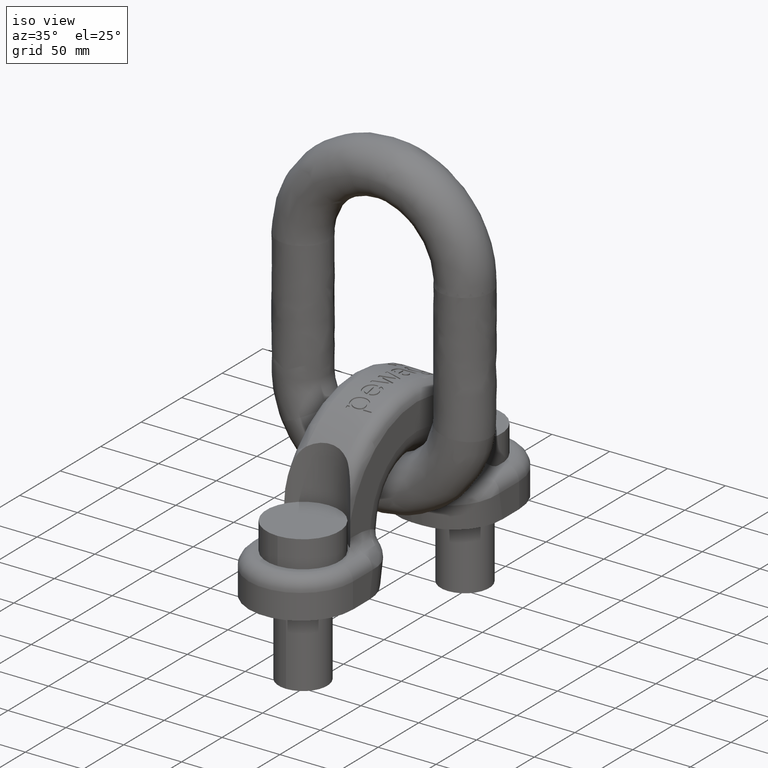
[diagram: clean part render]
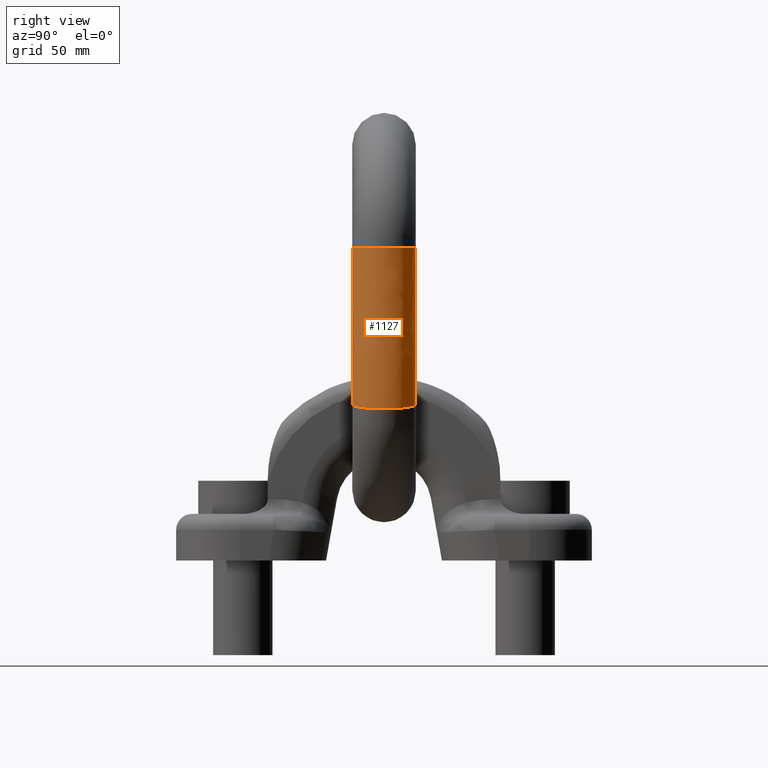
[diagram: tour spotlight — one face highlighted and labeled with its STEP entity id]
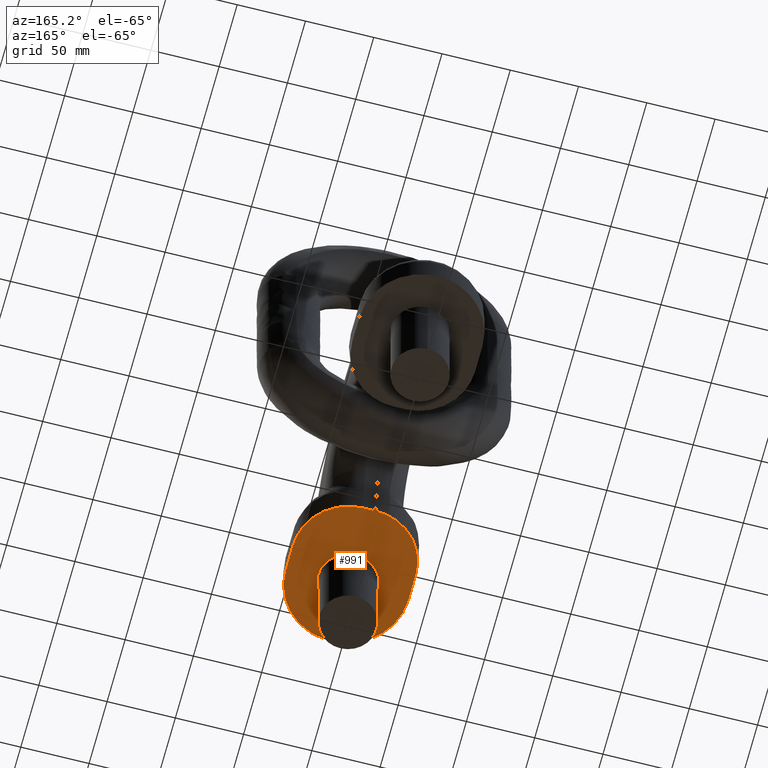
[diagram: tour spotlight — one face highlighted and labeled with its STEP entity id]
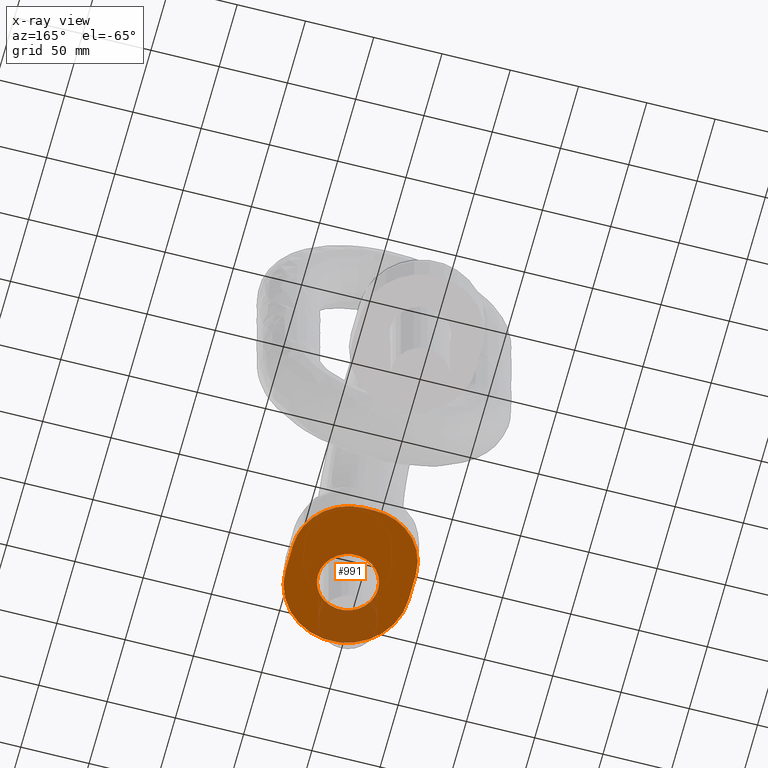
[diagram: x-ray of the same camera — body ghosted, this tour face saturated]
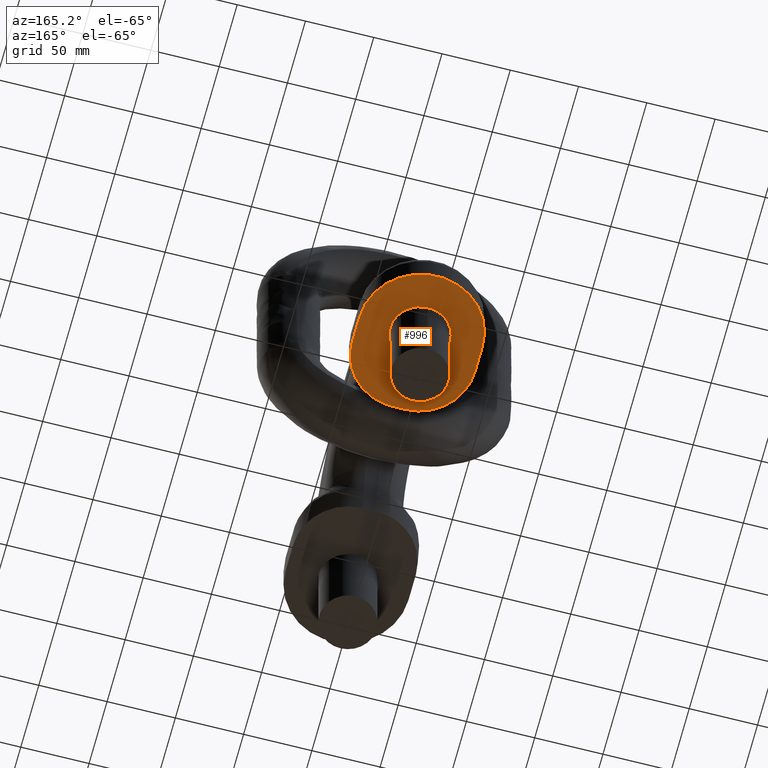
[diagram: tour spotlight — one face highlighted and labeled with its STEP entity id]
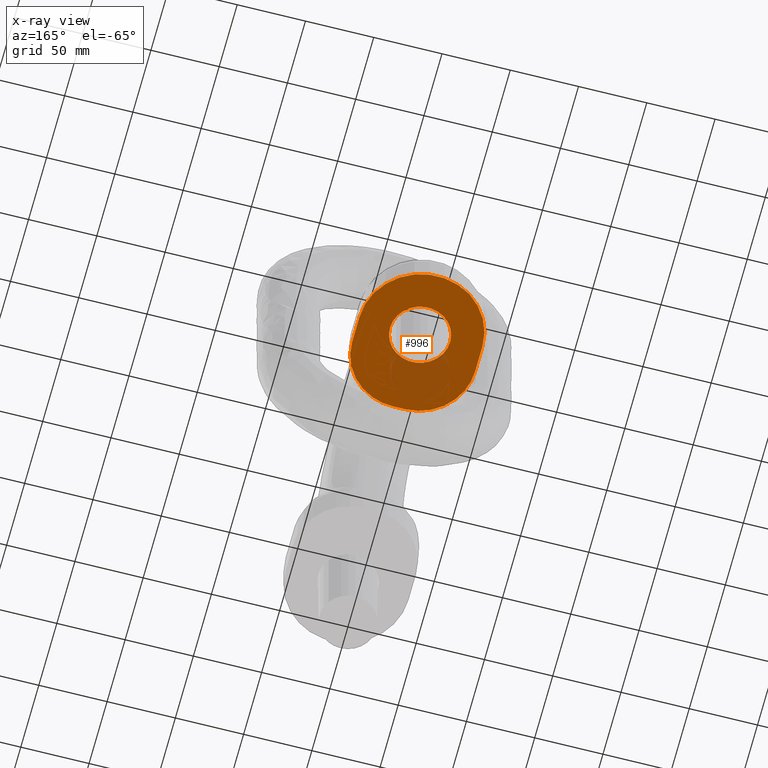
[diagram: x-ray of the same camera — body ghosted, this tour face saturated]
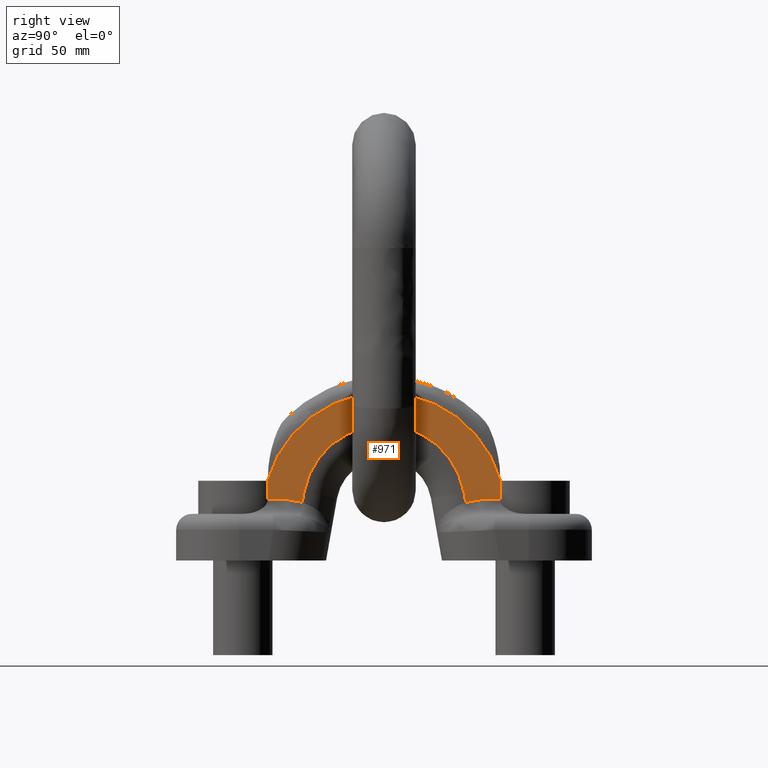
[diagram: tour spotlight — one face highlighted and labeled with its STEP entity id]
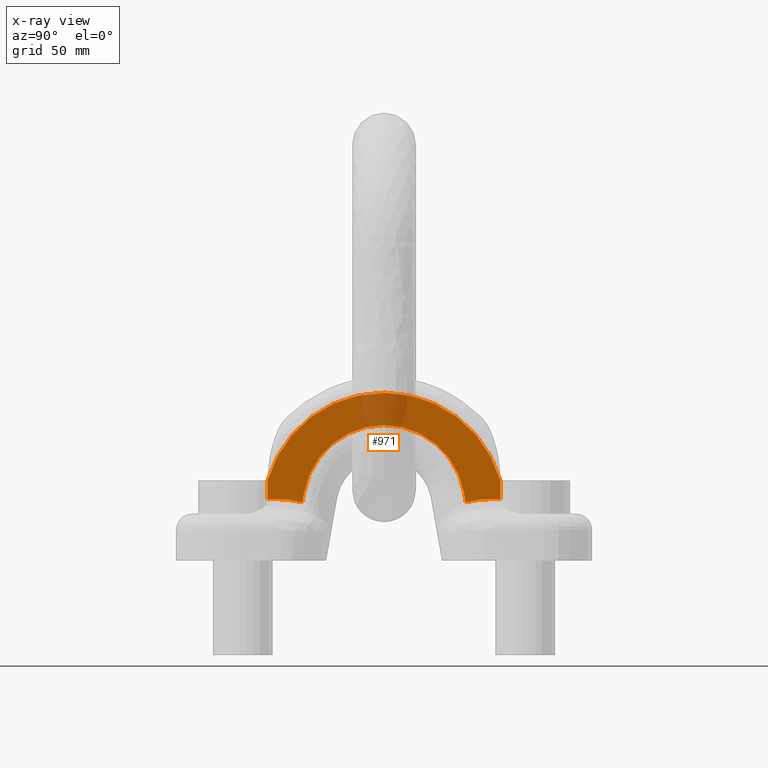
[diagram: x-ray of the same camera — body ghosted, this tour face saturated]
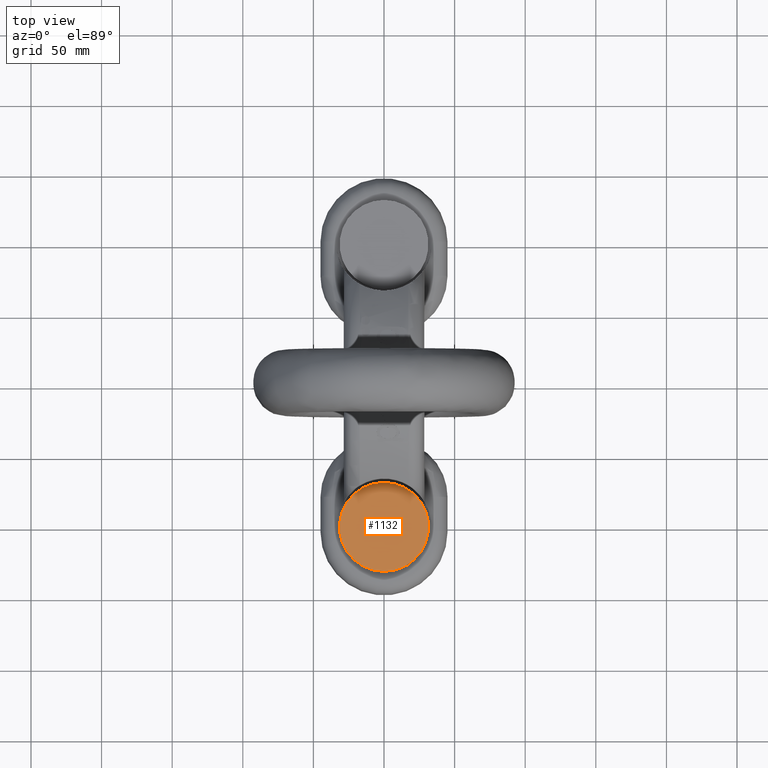
[diagram: tour spotlight — one face highlighted and labeled with its STEP entity id]
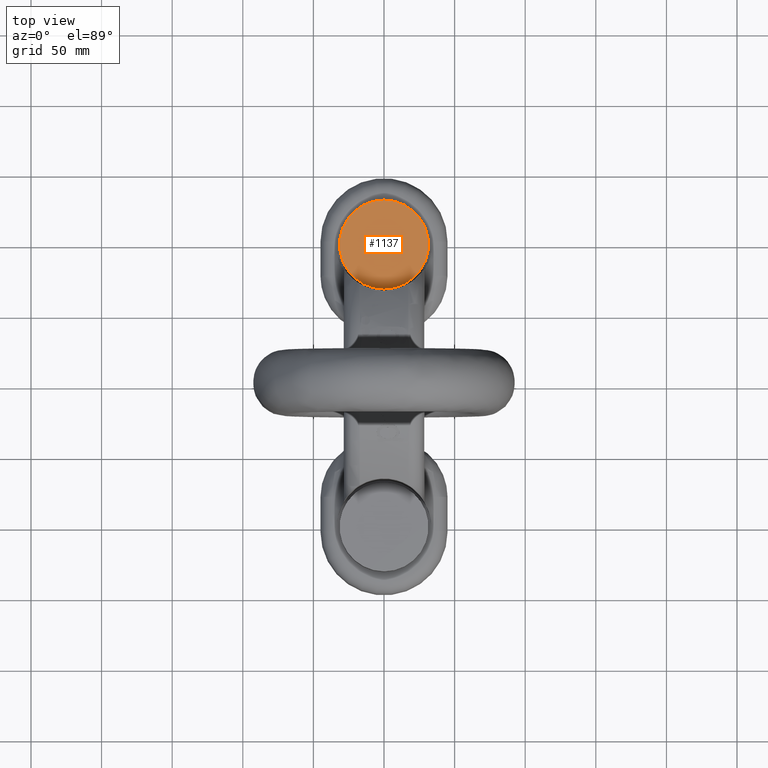
[diagram: tour spotlight — one face highlighted and labeled with its STEP entity id]
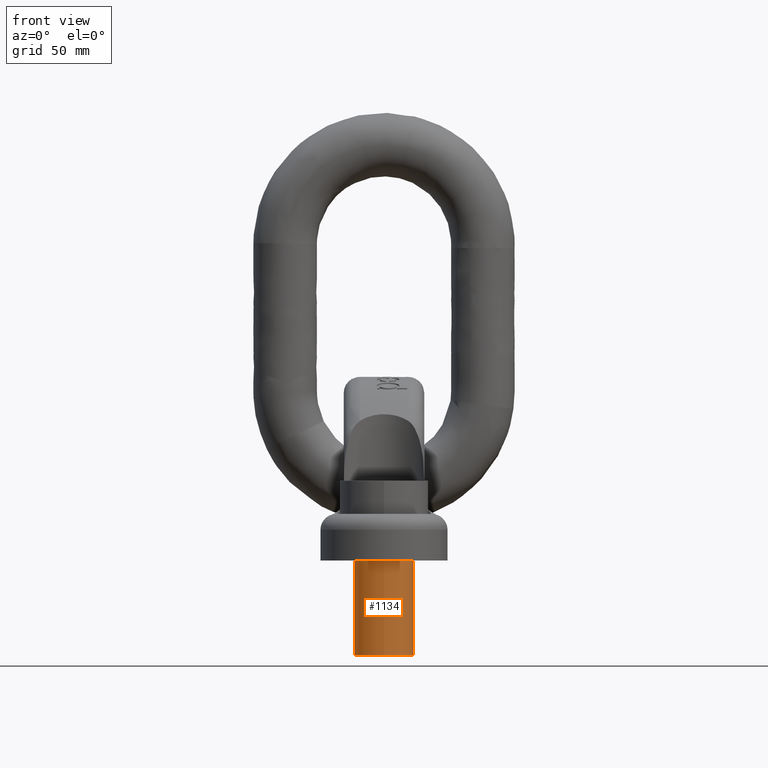
[diagram: tour spotlight — one face highlighted and labeled with its STEP entity id]
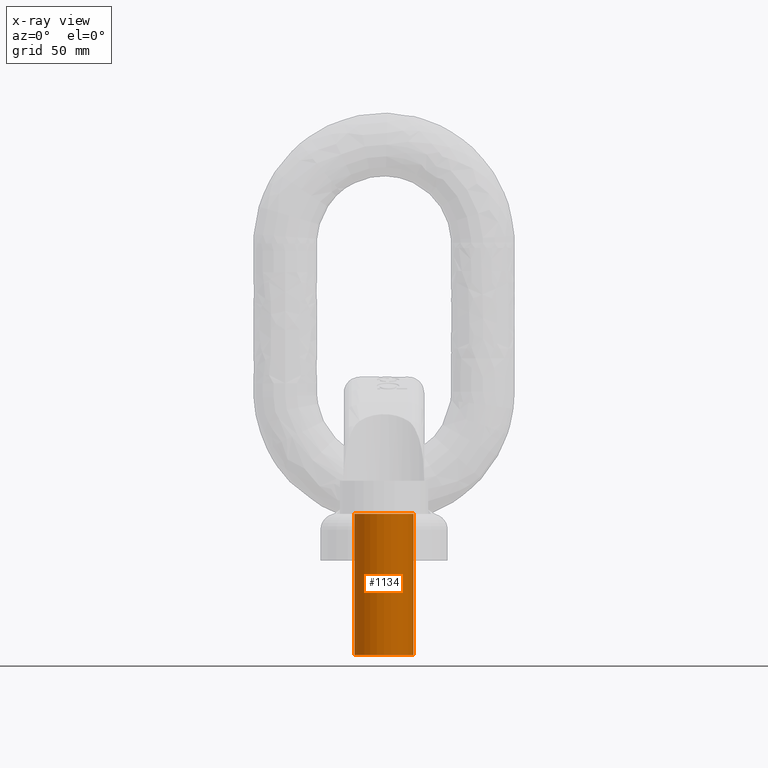
[diagram: x-ray of the same camera — body ghosted, this tour face saturated]
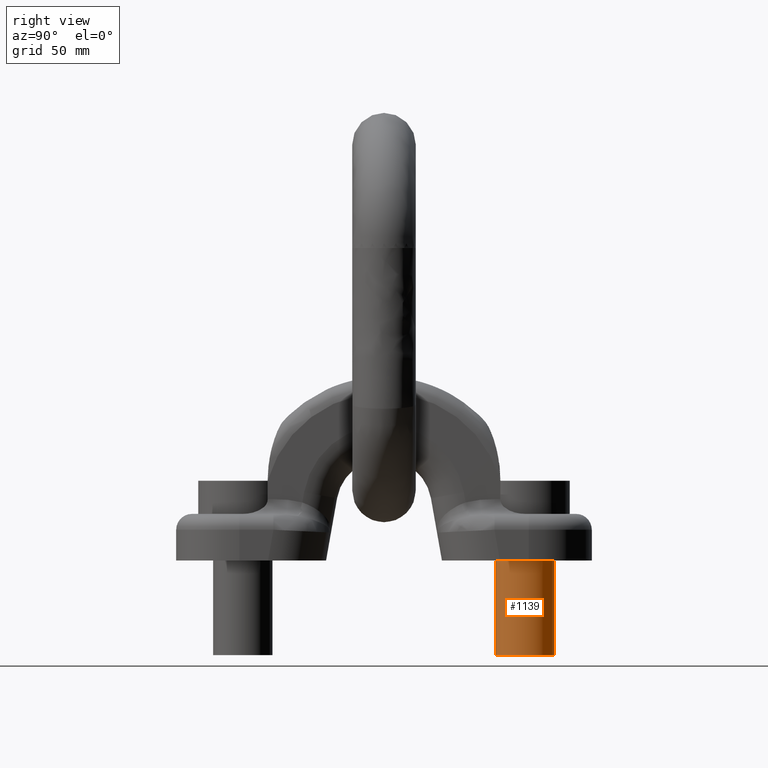
[diagram: tour spotlight — one face highlighted and labeled with its STEP entity id]
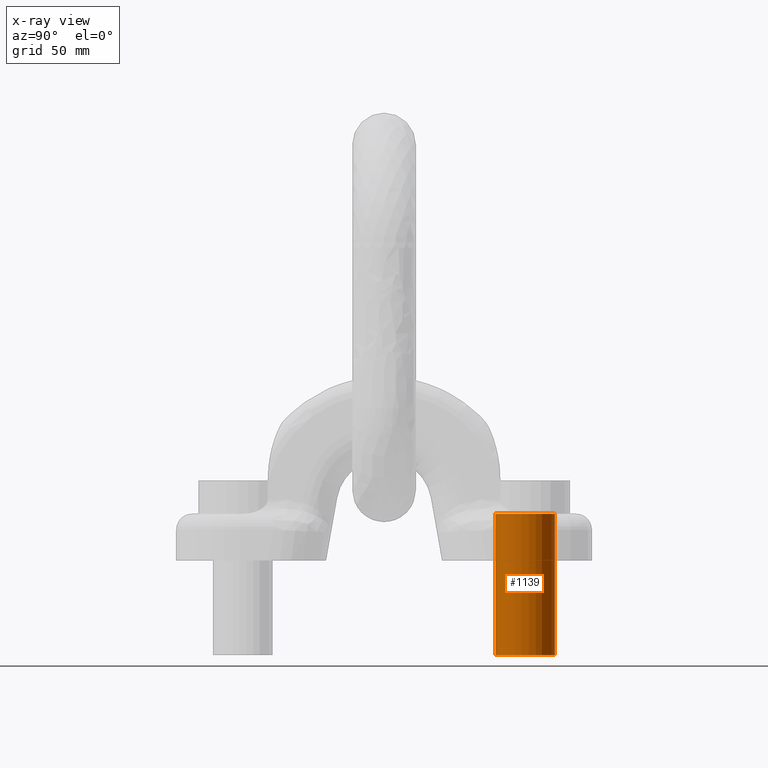
[diagram: x-ray of the same camera — body ghosted, this tour face saturated]
A machine part: a face-by-face anatomy tour. The part has 171 B-rep faces; the first image is the clean iso view, then the 8 largest visible faces are spotlighted one at a time (largest first), each with its STEP entity span.

Face 1 — right view, entity #1127. In plain terms, the highlighted face is a freeform B-spline surface patch.
Definition (entity closure, byte-faithful):
#23=(
BOUNDED_CURVE()
B_SPLINE_CURVE(4,(#7091,#7092,#7093,#7094,#7095,#7096,#7097,#7098,#7099,
#7100,#7101,#7102,#7103,#7104),.UNSPECIFIED.,.T.,.F.)
B_SPLINE_CURVE_WITH_KNOTS((2,3,3,3,3,3,2),(-0.25,0.,0.25,0.5,0.75,1.,1.25),
 .UNSPECIFIED.)
CURVE()
GEOMETRIC_REPRESENTATION_ITEM()
RATIONAL_B_SPLINE_CURVE((1.0166117137858,1.0166117137858,0.958470715535492,
1.0166117137858,1.0166117137858,0.958470715535492,1.0166117137858,1.0166117137858,
0.958470715535492,1.0166117137858,1.0166117137858,0.958470715535492,1.0166117137858,
1.0166117137858))
REPRESENTATION_ITEM('')
);
#24=(
BOUNDED_CURVE()
B_SPLINE_CURVE(4,(#7106,#7107,#7108,#7109,#7110,#7111,#7112,#7113,#7114,
#7115,#7116,#7117,#7118,#7119),.UNSPECIFIED.,.T.,.F.)
B_SPLINE_CURVE_WITH_KNOTS((2,3,3,3,3,3,2),(-0.25,0.,0.25,0.5,0.75,1.,1.25),
 .UNSPECIFIED.)
CURVE()
GEOMETRIC_REPRESENTATION_ITEM()
RATIONAL_B_SPLINE_CURVE((1.0166117137858,1.0166117137858,0.958470715535492,
1.0166117137858,1.0166117137858,0.958470715535492,1.0166117137858,1.0166117137858,
0.958470715535492,1.0166117137858,1.0166117137858,0.958470715535492,1.0166117137858,
1.0166117137858))
REPRESENTATION_ITEM('')
);
#755=(
BOUNDED_SURFACE()
B_SPLINE_SURFACE(4,3,((#7121,#7122,#7123,#7124,#7125,#7126,#7127,#7128,
#7129,#7130),(#7131,#7132,#7133,#7134,#7135,#7136,#7137,#7138,#7139,#7140),
(#7141,#7142,#7143,#7144,#7145,#7146,#7147,#7148,#7149,#7150),(#7151,#7152,
#7153,#7154,#7155,#7156,#7157,#7158,#7159,#7160),(#7161,#7162,#7163,#7164,
#7165,#7166,#7167,#7168,#7169,#7170),(#7171,#7172,#7173,#7174,#7175,#7176,
#7177,#7178,#7179,#7180),(#7181,#7182,#7183,#7184,#7185,#7186,#7187,#7188,
#7189,#7190),(#7191,#7192,#7193,#7194,#7195,#7196,#7197,#7198,#7199,#7200),
(#7201,#7202,#7203,#7204,#7205,#7206,#7207,#7208,#7209,#7210),(#7211,#7212,
#7213,#7214,#7215,#7216,#7217,#7218,#7219,#7220),(#7221,#7222,#7223,#7224,
#7225,#7226,#7227,#7228,#7229,#7230),(#7231,#7232,#7233,#7234,#7235,#7236,
#7237,#7238,#7239,#7240),(#7241,#7242,#7243,#7244,#7245,#7246,#7247,#7248,
#7249,#7250),(#7251,#7252,#7253,#7254,#7255,#7256,#7257,#7258,#7259,#7260)),
 .UNSPECIFIED.,.T.,.F.,.F.)
B_SPLINE_SURFACE_WITH_KNOTS((2,3,3,3,3,3,2),(4,1,1,1,1,1,1,4),(-0.25,0.,
0.25,0.5,0.75,1.,1.25),(0.,0.0432087135786119,0.0921088676254971,0.141290802977337,
0.189262808703866,0.373676181936575,0.994886599698742,1.),.UNSPECIFIED.)
GEOMETRIC_REPRESENTATION_ITEM()
RATIONAL_B_SPLINE_SURFACE(((1.0166117137858,1.0166117137858,1.0166117137858,
1.0166117137858,1.0166117137858,1.0166117137858,1.0166117137858,1.0166117137858,
1.0166117137858,1.0166117137858),(1.0166117137858,1.0166117137858,1.0166117137858,
1.0166117137858,1.0166117137858,1.0166117137858,1.0166117137858,1.0166117137858,
1.0166117137858,1.0166117137858),(0.958470715535492,0.958470715535492,0.958470715535491,
0.958470715535493,0.958470715535492,0.958470715535493,0.95847071553549,
0.958470715535493,0.958470715535492,0.958470715535492),(1.0166117137858,
1.0166117137858,1.0166117137858,1.0166117137858,1.0166117137858,1.0166117137858,
1.0166117137858,1.0166117137858,1.0166117137858,1.0166117137858),(1.0166117137858,
1.0166117137858,1.0166117137858,1.0166117137858,1.0166117137858,1.0166117137858,
1.0166117137858,1.0166117137858,1.0166117137858,1.0166117137858),(0.958470715535492,
0.958470715535492,0.958470715535491,0.958470715535493,0.958470715535492,
0.958470715535493,0.95847071553549,0.958470715535493,0.958470715535492,
0.958470715535492),(1.0166117137858,1.0166117137858,1.0166117137858,1.0166117137858,
1.0166117137858,1.0166117137858,1.0166117137858,1.0166117137858,1.0166117137858,
1.0166117137858),(1.0166117137858,1.0166117137858,1.0166117137858,1.0166117137858,
1.0166117137858,1.0166117137858,1.0166117137858,1.0166117137858,1.0166117137858,
1.0166117137858),(0.958470715535492,0.958470715535492,0.958470715535491,
0.958470715535493,0.958470715535492,0.958470715535493,0.95847071553549,
0.958470715535493,0.958470715535492,0.958470715535492),(1.0166117137858,
1.0166117137858,1.0166117137858,1.0166117137858,1.0166117137858,1.0166117137858,
1.0166117137858,1.0166117137858,1.0166117137858,1.0166117137858),(1.0166117137858,
1.0166117137858,1.0166117137858,1.0166117137858,1.0166117137858,1.0166117137858,
1.0166117137858,1.0166117137858,1.0166117137858,1.0166117137858),(0.958470715535492,
0.958470715535492,0.958470715535491,0.958470715535493,0.958470715535492,
0.958470715535493,0.95847071553549,0.958470715535493,0.958470715535492,
0.958470715535492),(1.0166117137858,1.0166117137858,1.0166117137858,1.0166117137858,
1.0166117137858,1.0166117137858,1.0166117137858,1.0166117137858,1.0166117137858,
1.0166117137858),(1.0166117137858,1.0166117137858,1.0166117137858,1.0166117137858,
1.0166117137858,1.0166117137858,1.0166117137858,1.0166117137858,1.0166117137858,
1.0166117137858)))
REPRESENTATION_ITEM('')
SURFACE()
);
#1127=ADVANCED_FACE('',(#1519,#1520),#755,.F.);
#1519=FACE_BOUND('',#1717,.T.);
#1520=FACE_BOUND('',#1718,.T.);
#1717=EDGE_LOOP('',(#2819));
#1718=EDGE_LOOP('',(#2820));
#2819=ORIENTED_EDGE('',*,*,#3501,.T.);
#2820=ORIENTED_EDGE('',*,*,#3502,.F.);
#3097=VERTEX_POINT('',#7105);
#3098=VERTEX_POINT('',#7120);
#3501=EDGE_CURVE('',#3097,#3097,#23,.T.);
#3502=EDGE_CURVE('',#3098,#3098,#24,.T.);
#7091=CARTESIAN_POINT('',(77.3007613865596,22.5,109.379454022416));
#7092=CARTESIAN_POINT('',(61.5243730694713,22.5,111.463071945445));
#7093=CARTESIAN_POINT('',(51.0454819839968,18.5225243558257,112.847039228724));
#7094=CARTESIAN_POINT('',(47.1013849047248,7.95495128834867,113.367943709481));
#7095=CARTESIAN_POINT('',(47.1013849047248,-7.95495128834865,113.367943709481));
#7096=CARTESIAN_POINT('',(51.0454819839968,-18.5225243558257,112.847039228724));
#7097=CARTESIAN_POINT('',(61.5243730694712,-22.5,111.463071945445));
#7098=CARTESIAN_POINT('',(77.3007613865595,-22.5,109.379454022416));
#7099=CARTESIAN_POINT('',(87.779652472034,-18.5225243558257,107.995486739137));
#7100=CARTESIAN_POINT('',(91.7237495513061,-7.95495128834867,107.474582258379));
#7101=CARTESIAN_POINT('',(91.7237495513061,7.95495128834865,107.474582258379));
#7102=CARTESIAN_POINT('',(87.779652472034,18.5225243558256,107.995486739137));
#7103=CARTESIAN_POINT('',(77.3007613865596,22.5,109.379454022416));
#7104=CARTESIAN_POINT('',(61.5243730694713,22.5,111.463071945445));
#7105=CARTESIAN_POINT('',(69.4125672280154,22.5,110.42126298393));
#7106=CARTESIAN_POINT('',(77.9548750239718,22.5,221.279225035843));
#7107=CARTESIAN_POINT('',(62.0449880121461,22.5,221.278385300655));
#7108=CARTESIAN_POINT('',(51.4774252830678,18.5225243558257,221.277827537155));
#7109=CARTESIAN_POINT('',(47.4999535301114,7.95495128834866,221.277617603358));
#7110=CARTESIAN_POINT('',(47.4999535301114,-7.95495128834867,221.277617603358));
#7111=CARTESIAN_POINT('',(51.4774252830679,-18.5225243558257,221.277827537155));
#7112=CARTESIAN_POINT('',(62.0449880121461,-22.5,221.278385300655));
#7113=CARTESIAN_POINT('',(77.9548750239718,-22.5,221.279225035843));
#7114=CARTESIAN_POINT('',(88.52243775305,-18.5225243558257,221.279782799343));
#7115=CARTESIAN_POINT('',(92.4999095060064,-7.95495128834866,221.27999273314));
#7116=CARTESIAN_POINT('',(92.4999095060064,7.95495128834866,221.27999273314));
#7117=CARTESIAN_POINT('',(88.52243775305,18.5225243558257,221.279782799343));
#7118=CARTESIAN_POINT('',(77.9548750239718,22.5,221.279225035843));
#7119=CARTESIAN_POINT('',(62.0449880121461,22.5,221.278385300655));
#7120=CARTESIAN_POINT('',(69.9999315180589,22.5,221.278805168249));
#7121=CARTESIAN_POINT('',(61.5243730694713,22.5,111.463071945445));
#7122=CARTESIAN_POINT('',(61.6841675240441,22.5,112.689595749437));
#7123=CARTESIAN_POINT('',(61.9490660167534,22.5,115.33886785264));
#7124=CARTESIAN_POINT('',(62.0719379187288,22.5,119.329266250323));
#7125=CARTESIAN_POINT('',(62.0403747593272,22.5,124.539408769396));
#7126=CARTESIAN_POINT('',(62.0468340514941,22.4999999999999,134.445102627707));
#7127=CARTESIAN_POINT('',(62.0433444384774,22.5000000000001,165.975830546508));
#7128=CARTESIAN_POINT('',(62.0456695433861,22.4999999999999,198.17382256403));
#7129=CARTESIAN_POINT('',(62.0449923462162,22.5,221.091411880696));
#7130=CARTESIAN_POINT('',(62.0449880121461,22.5,221.278385300655));
#7131=CARTESIAN_POINT('',(77.3007613865596,22.5,109.379454022416));
#7132=CARTESIAN_POINT('',(77.5015311366207,22.5,110.907548343909));
#7133=CARTESIAN_POINT('',(77.8343562294252,22.5,114.217875140239));
#7134=CARTESIAN_POINT('',(77.9887355607674,22.5,119.631356401599));
#7135=CARTESIAN_POINT('',(77.9490788177274,22.5,124.489054213263));
#7136=CARTESIAN_POINT('',(77.9571944339886,22.5,134.463268032859));
#7137=CARTESIAN_POINT('',(77.9528099968991,22.5,165.960124612621));
#7138=CARTESIAN_POINT('',(77.955731316871,22.4999999999999,198.177667293768));
#7139=CARTESIAN_POINT('',(77.9548804694059,22.5,221.092307189764));
#7140=CARTESIAN_POINT('',(77.9548750239718,22.5,221.279225035843));
#7141=CARTESIAN_POINT('',(87.779652472034,18.5225243558256,107.995486739137));
#7142=CARTESIAN_POINT('',(88.0076385690808,18.5225243558257,109.723888288366));
#7143=CARTESIAN_POINT('',(88.3855814309143,18.5225243558257,113.473296577341));
#7144=CARTESIAN_POINT('',(88.5608884241576,18.5225243558256,119.832008777135));
#7145=CARTESIAN_POINT('',(88.5158558130967,18.5225243558257,124.455608034152));
#7146=CARTESIAN_POINT('',(88.5250715822848,18.5225243558257,134.475333741326));
#7147=CARTESIAN_POINT('',(88.5200927909109,18.5225243558257,165.949692518324));
#7148=CARTESIAN_POINT('',(88.5234101250133,18.5225243558257,198.180221015403));
#7149=CARTESIAN_POINT('',(88.5224439366672,18.5225243558257,221.092901866189));
#7150=CARTESIAN_POINT('',(88.52243775305,18.5225243558257,221.279782799343));
#7151=CARTESIAN_POINT('',(91.7237495513061,7.95495128834865,107.474582258379));
#7152=CARTESIAN_POINT('',(91.9619794722249,7.95495128834865,109.278376436984));
#7153=CARTESIAN_POINT('',(92.3569039840823,7.95495128834864,113.19304839924));
#7154=CARTESIAN_POINT('',(92.5400878346671,7.95495128834864,119.907531314954));
#7155=CARTESIAN_POINT('',(92.4930318276967,7.95495128834867,124.443019395118));
#7156=CARTESIAN_POINT('',(92.5026616779085,7.95495128834866,134.479875092615));
#7157=CARTESIAN_POINT('',(92.4974591805161,7.95495128834866,165.945766034851));
#7158=CARTESIAN_POINT('',(92.5009255683843,7.95495128834867,198.181182197839));
#7159=CARTESIAN_POINT('',(92.4999159674646,7.95495128834866,221.093125693455));
#7160=CARTESIAN_POINT('',(92.4999095060064,7.95495128834866,221.27999273314));
#7161=CARTESIAN_POINT('',(91.7237495513061,-7.95495128834867,107.474582258379));
#7162=CARTESIAN_POINT('',(91.9619794722249,-7.95495128834868,109.278376436984));
#7163=CARTESIAN_POINT('',(92.3569039840823,-7.95495128834868,113.19304839924));
#7164=CARTESIAN_POINT('',(92.5400878346671,-7.95495128834867,119.907531314954));
#7165=CARTESIAN_POINT('',(92.4930318276968,-7.95495128834866,124.443019395118));
#7166=CARTESIAN_POINT('',(92.5026616779084,-7.95495128834865,134.479875092615));
#7167=CARTESIAN_POINT('',(92.4974591805163,-7.95495128834867,165.945766034851));
#7168=CARTESIAN_POINT('',(92.5009255683843,-7.95495128834865,198.181182197839));
#7169=CARTESIAN_POINT('',(92.4999159674646,-7.95495128834866,221.093125693455));
#7170=CARTESIAN_POINT('',(92.4999095060064,-7.95495128834866,221.27999273314));
#7171=CARTESIAN_POINT('',(87.779652472034,-18.5225243558257,107.995486739137));
#7172=CARTESIAN_POINT('',(88.0076385690807,-18.5225243558257,109.723888288366));
#7173=CARTESIAN_POINT('',(88.3855814309143,-18.5225243558257,113.473296577341));
#7174=CARTESIAN_POINT('',(88.5608884241576,-18.5225243558257,119.832008777135));
#7175=CARTESIAN_POINT('',(88.5158558130967,-18.5225243558257,124.455608034152));
#7176=CARTESIAN_POINT('',(88.5250715822848,-18.5225243558257,134.475333741326));
#7177=CARTESIAN_POINT('',(88.520092790911,-18.5225243558257,165.949692518324));
#7178=CARTESIAN_POINT('',(88.5234101250131,-18.5225243558257,198.180221015403));
#7179=CARTESIAN_POINT('',(88.5224439366672,-18.5225243558257,221.092901866189));
#7180=CARTESIAN_POINT('',(88.52243775305,-18.5225243558257,221.279782799343));
#7181=CARTESIAN_POINT('',(77.3007613865595,-22.5,109.379454022416));
#7182=CARTESIAN_POINT('',(77.5015311366206,-22.5,110.907548343909));
#7183=CARTESIAN_POINT('',(77.8343562294251,-22.5,114.217875140239));
#7184=CARTESIAN_POINT('',(77.9887355607674,-22.5,119.631356401599));
#7185=CARTESIAN_POINT('',(77.9490788177274,-22.5,124.489054213263));
#7186=CARTESIAN_POINT('',(77.9571944339886,-22.5,134.463268032859));
#7187=CARTESIAN_POINT('',(77.9528099968991,-22.5,165.960124612621));
#7188=CARTESIAN_POINT('',(77.955731316871,-22.4999999999999,198.177667293768));
#7189=CARTESIAN_POINT('',(77.9548804694059,-22.5,221.092307189764));
#7190=CARTESIAN_POINT('',(77.9548750239718,-22.5,221.279225035843));
#7191=CARTESIAN_POINT('',(61.5243730694713,-22.5,111.463071945445));
#7192=CARTESIAN_POINT('',(61.684167524044,-22.5,112.689595749437));
#7193=CARTESIAN_POINT('',(61.9490660167534,-22.5,115.33886785264));
#7194=CARTESIAN_POINT('',(62.0719379187288,-22.5,119.329266250323));
#7195=CARTESIAN_POINT('',(62.0403747593272,-22.5,124.539408769396));
#7196=CARTESIAN_POINT('',(62.0468340514942,-22.5,134.445102627707));
#7197=CARTESIAN_POINT('',(62.0433444384773,-22.5,165.975830546508));
#7198=CARTESIAN_POINT('',(62.0456695433862,-22.4999999999999,198.17382256403));
#7199=CARTESIAN_POINT('',(62.0449923462162,-22.5,221.091411880696));
#7200=CARTESIAN_POINT('',(62.0449880121461,-22.5,221.278385300655));
#7201=CARTESIAN_POINT('',(51.0454819839968,-18.5225243558257,112.847039228724));
#7202=CARTESIAN_POINT('',(51.1780600915839,-18.5225243558257,113.87325580498));
#7203=CARTESIAN_POINT('',(51.3978408152642,-18.5225243558257,116.083446415538));
#7204=CARTESIAN_POINT('',(51.4997850553387,-18.5225243558257,119.128613874787));
#7205=CARTESIAN_POINT('',(51.4735977639578,-18.5225243558257,124.572854948507));
#7206=CARTESIAN_POINT('',(51.4789569031981,-18.5225243558257,134.433036919239));
#7207=CARTESIAN_POINT('',(51.4760616444653,-18.5225243558257,165.986262640807));
#7208=CARTESIAN_POINT('',(51.4779907352442,-18.5225243558257,198.171268842393));
#7209=CARTESIAN_POINT('',(51.4774288789549,-18.5225243558257,221.090817204271));
#7210=CARTESIAN_POINT('',(51.4774252830679,-18.5225243558257,221.277827537155));
#7211=CARTESIAN_POINT('',(47.1013849047248,-7.95495128834865,113.367943709481));
#7212=CARTESIAN_POINT('',(47.2237191884398,-7.95495128834865,114.318767656362));
#7213=CARTESIAN_POINT('',(47.4265182620962,-7.95495128834864,116.363694593639));
#7214=CARTESIAN_POINT('',(47.5205856448291,-7.95495128834864,119.053091336968));
#7215=CARTESIAN_POINT('',(47.4964217493578,-7.95495128834868,124.58544358754));
#7216=CARTESIAN_POINT('',(47.5013668075746,-7.95495128834865,134.428495567952));
#7217=CARTESIAN_POINT('',(47.4986952548596,-7.9549512883487,165.990189124277));
#7218=CARTESIAN_POINT('',(47.5004752918731,-7.95495128834865,198.170307659959));
#7219=CARTESIAN_POINT('',(47.4999568481575,-7.95495128834867,221.090593377004));
#7220=CARTESIAN_POINT('',(47.4999535301114,-7.95495128834867,221.277617603358));
#7221=CARTESIAN_POINT('',(47.1013849047248,7.95495128834868,113.367943709481));
#7222=CARTESIAN_POINT('',(47.2237191884398,7.95495128834868,114.318767656362));
#7223=CARTESIAN_POINT('',(47.4265182620963,7.95495128834868,116.363694593639));
#7224=CARTESIAN_POINT('',(47.5205856448291,7.95495128834867,119.053091336968));
#7225=CARTESIAN_POINT('',(47.4964217493578,7.95495128834865,124.58544358754));
#7226=CARTESIAN_POINT('',(47.5013668075746,7.95495128834866,134.428495567952));
#7227=CARTESIAN_POINT('',(47.4986952548596,7.95495128834865,165.990189124277));
#7228=CARTESIAN_POINT('',(47.5004752918731,7.95495128834866,198.170307659959));
#7229=CARTESIAN_POINT('',(47.4999568481575,7.95495128834866,221.090593377004));
#7230=CARTESIAN_POINT('',(47.4999535301114,7.95495128834866,221.277617603358));
#7231=CARTESIAN_POINT('',(51.0454819839968,18.5225243558257,112.847039228724));
#7232=CARTESIAN_POINT('',(51.178060091584,18.5225243558257,113.87325580498));
#7233=CARTESIAN_POINT('',(51.3978408152642,18.5225243558257,116.083446415538));
#7234=CARTESIAN_POINT('',(51.4997850553388,18.5225243558257,119.128613874787));
#7235=CARTESIAN_POINT('',(51.4735977639578,18.5225243558257,124.572854948507));
#7236=CARTESIAN_POINT('',(51.4789569031982,18.5225243558257,134.433036919239));
#7237=CARTESIAN_POINT('',(51.4760616444652,18.5225243558256,165.986262640807));
#7238=CARTESIAN_POINT('',(51.4779907352443,18.5225243558257,198.171268842393));
#7239=CARTESIAN_POINT('',(51.4774288789549,18.5225243558257,221.090817204271));
#7240=CARTESIAN_POINT('',(51.4774252830678,18.5225243558257,221.277827537155));
#7241=CARTESIAN_POINT('',(61.5243730694713,22.5,111.463071945445));
#7242=CARTESIAN_POINT('',(61.6841675240441,22.5,112.689595749437));
#7243=CARTESIAN_POINT('',(61.9490660167534,22.5,115.33886785264));
#7244=CARTESIAN_POINT('',(62.0719379187288,22.5,119.329266250323));
#7245=CARTESIAN_POINT('',(62.0403747593272,22.5,124.539408769396));
#7246=CARTESIAN_POINT('',(62.0468340514941,22.4999999999999,134.445102627707));
#7247=CARTESIAN_POINT('',(62.0433444384774,22.5000000000001,165.975830546508));
#7248=CARTESIAN_POINT('',(62.0456695433861,22.4999999999999,198.17382256403));
#7249=CARTESIAN_POINT('',(62.0449923462162,22.5,221.091411880696));
#7250=CARTESIAN_POINT('',(62.0449880121461,22.5,221.278385300655));
#7251=CARTESIAN_POINT('',(77.3007613865596,22.5,109.379454022416));
#7252=CARTESIAN_POINT('',(77.5015311366207,22.5,110.907548343909));
#7253=CARTESIAN_POINT('',(77.8343562294252,22.5,114.217875140239));
#7254=CARTESIAN_POINT('',(77.9887355607674,22.5,119.631356401599));
#7255=CARTESIAN_POINT('',(77.9490788177274,22.5,124.489054213263));
#7256=CARTESIAN_POINT('',(77.9571944339886,22.5,134.463268032859));
#7257=CARTESIAN_POINT('',(77.9528099968991,22.5,165.960124612621));
#7258=CARTESIAN_POINT('',(77.955731316871,22.4999999999999,198.177667293768));
#7259=CARTESIAN_POINT('',(77.9548804694059,22.5,221.092307189764));
#7260=CARTESIAN_POINT('',(77.9548750239718,22.5,221.279225035843));

Face 2 — auxiliary view, entity #991. An x-ray twin of the same camera follows (body ghosted, this face saturated) — the face is partly hidden behind the body. In plain terms, the highlighted planar face has unit normal (0, 0, 1).
Definition (entity closure, byte-faithful):
#773=PLANE('',#3610);
#991=ADVANCED_FACE('',(#1493,#1494),#773,.F.);
#1204=LINE('',#5194,#1334);
#1212=LINE('',#5226,#1342);
#1221=LINE('',#5262,#1351);
#1334=VECTOR('',#3859,1.);
#1342=VECTOR('',#3891,1.);
#1351=VECTOR('',#3928,1.);
#1493=FACE_BOUND('',#1568,.T.);
#1494=FACE_BOUND('',#1569,.T.);
#1568=EDGE_LOOP('',(#2208));
#1569=EDGE_LOOP('',(#2209,#2210,#2211,#2212,#2213,#2214));
#1992=CIRCLE('',#3608,22.);
#1993=CIRCLE('',#3609,45.);
#2208=ORIENTED_EDGE('',*,*,#3264,.F.);
#2209=ORIENTED_EDGE('',*,*,#3231,.F.);
#2210=ORIENTED_EDGE('',*,*,#3243,.T.);
#2211=ORIENTED_EDGE('',*,*,#3265,.F.);
#2212=ORIENTED_EDGE('',*,*,#3262,.T.);
#2213=ORIENTED_EDGE('',*,*,#3247,.F.);
#2214=ORIENTED_EDGE('',*,*,#3266,.F.);
#2953=VERTEX_POINT('',#5189);
#2955=VERTEX_POINT('',#5193);
#2963=VERTEX_POINT('',#5216);
#2964=VERTEX_POINT('',#5220);
#2967=VERTEX_POINT('',#5225);
#2979=VERTEX_POINT('',#5257);
#2980=VERTEX_POINT('',#5261);
#3231=EDGE_CURVE('',#2955,#2953,#1204,.T.);
#3243=EDGE_CURVE('',#2955,#2963,#3529,.T.);
#3247=EDGE_CURVE('',#2967,#2964,#1212,.T.);
#3262=EDGE_CURVE('',#2979,#2964,#3533,.T.);
#3264=EDGE_CURVE('',#2980,#2980,#1992,.T.);
#3265=EDGE_CURVE('',#2979,#2963,#1221,.T.);
#3266=EDGE_CURVE('',#2953,#2967,#1993,.T.);
#3529=ELLIPSE('',#3593,41.1247777813727,40.5);
#3533=ELLIPSE('',#3606,41.1247777813727,40.5);
#3593=AXIS2_PLACEMENT_3D('',#5217,#3884,#3885);
#3606=AXIS2_PLACEMENT_3D('',#5256,#3921,#3922);
#3608=AXIS2_PLACEMENT_3D('',#5260,#3926,#3927);
#3609=AXIS2_PLACEMENT_3D('',#5263,#3929,#3930);
#3610=AXIS2_PLACEMENT_3D('',#5264,#3931,#3932);
#3859=DIRECTION('',(1.35393051783556E-16,-1.,0.));
#3884=DIRECTION('',(0.,0.,-1.));
#3885=DIRECTION('',(1.35393051783556E-16,-1.,0.));
#3891=DIRECTION('',(0.,1.,0.));
#3921=DIRECTION('',(0.,0.,-1.));
#3922=DIRECTION('',(0.,1.,0.));
#3926=DIRECTION('',(0.,0.,-1.));
#3927=DIRECTION('',(1.,0.,0.));
#3928=DIRECTION('',(-1.,0.,0.));
#3929=DIRECTION('',(0.,0.,1.));
#3930=DIRECTION('',(6.12323399573677E-17,1.,0.));
#3931=DIRECTION('',(0.,0.,1.));
#3932=DIRECTION('',(1.,0.,0.));
#5189=CARTESIAN_POINT('',(-45.,-102.5,0.));
#5193=CARTESIAN_POINT('',(-45.,-82.1399329446153,0.));
#5194=CARTESIAN_POINT('',(-45.,102.5,0.));
#5216=CARTESIAN_POINT('',(-4.49999999999996,-41.0151551632427,-6.93889390390723E-15));
#5217=CARTESIAN_POINT('',(-4.49999999999996,-82.1399329446153,0.));
#5220=CARTESIAN_POINT('',(45.,-82.1399329446153,0.));
#5225=CARTESIAN_POINT('',(45.,-102.5,0.));
#5226=CARTESIAN_POINT('',(45.,-102.5,0.));
#5256=CARTESIAN_POINT('',(4.49999999999996,-82.1399329446153,0.));
#5257=CARTESIAN_POINT('',(4.49999999999996,-41.0151551632427,-6.93889390390723E-15));
#5260=CARTESIAN_POINT('',(0.,-100.,0.));
#5261=CARTESIAN_POINT('',(22.,-100.,0.));
#5262=CARTESIAN_POINT('',(101.794096618134,-41.0151551632427,-6.93889390390723E-15));
#5263=CARTESIAN_POINT('',(0.,-102.5,0.));
#5264=CARTESIAN_POINT('',(90.,-147.5,0.));

Face 3 — auxiliary view, entity #996. An x-ray twin of the same camera follows (body ghosted, this face saturated) — the face is partly hidden behind the body. In plain terms, the highlighted planar face has unit normal (0, 0, 1).
Definition (entity closure, byte-faithful):
#776=PLANE('',#3625);
#996=ADVANCED_FACE('',(#1499,#1500),#776,.F.);
#1200=LINE('',#5185,#1330);
#1216=LINE('',#5235,#1346);
#1226=LINE('',#5302,#1356);
#1330=VECTOR('',#3853,1.);
#1346=VECTOR('',#3897,1.);
#1356=VECTOR('',#3965,1.);
#1499=FACE_BOUND('',#1576,.T.);
#1500=FACE_BOUND('',#1577,.T.);
#1576=EDGE_LOOP('',(#2237));
#1577=EDGE_LOOP('',(#2238,#2239,#2240,#2241,#2242,#2243));
#2001=CIRCLE('',#3620,45.);
#2003=CIRCLE('',#3624,22.);
#2237=ORIENTED_EDGE('',*,*,#3282,.T.);
#2238=ORIENTED_EDGE('',*,*,#3283,.T.);
#2239=ORIENTED_EDGE('',*,*,#3234,.T.);
#2240=ORIENTED_EDGE('',*,*,#3227,.F.);
#2241=ORIENTED_EDGE('',*,*,#3280,.F.);
#2242=ORIENTED_EDGE('',*,*,#3251,.F.);
#2243=ORIENTED_EDGE('',*,*,#3256,.T.);
#2948=VERTEX_POINT('',#5179);
#2951=VERTEX_POINT('',#5184);
#2958=VERTEX_POINT('',#5201);
#2969=VERTEX_POINT('',#5230);
#2971=VERTEX_POINT('',#5234);
#2975=VERTEX_POINT('',#5244);
#2991=VERTEX_POINT('',#5301);
#3227=EDGE_CURVE('',#2951,#2948,#1200,.T.);
#3234=EDGE_CURVE('',#2958,#2948,#3527,.T.);
#3251=EDGE_CURVE('',#2971,#2969,#1216,.T.);
#3256=EDGE_CURVE('',#2971,#2975,#3531,.T.);
#3280=EDGE_CURVE('',#2969,#2951,#2001,.T.);
#3282=EDGE_CURVE('',#2991,#2991,#2003,.T.);
#3283=EDGE_CURVE('',#2975,#2958,#1226,.T.);
#3527=ELLIPSE('',#3585,41.1247777813727,40.5);
#3531=ELLIPSE('',#3599,41.1247777813727,40.5);
#3585=AXIS2_PLACEMENT_3D('',#5200,#3865,#3866);
#3599=AXIS2_PLACEMENT_3D('',#5245,#3906,#3907);
#3620=AXIS2_PLACEMENT_3D('',#5296,#3955,#3956);
#3624=AXIS2_PLACEMENT_3D('',#5300,#3963,#3964);
#3625=AXIS2_PLACEMENT_3D('',#5303,#3966,#3967);
#3853=DIRECTION('',(1.35393051783556E-16,-1.,0.));
#3865=DIRECTION('',(0.,0.,-1.));
#3866=DIRECTION('',(1.35393051783556E-16,-1.,0.));
#3897=DIRECTION('',(0.,1.,0.));
#3906=DIRECTION('',(0.,0.,-1.));
#3907=DIRECTION('',(0.,1.,0.));
#3955=DIRECTION('',(0.,0.,1.));
#3956=DIRECTION('',(6.12323399573676E-17,1.,0.));
#3963=DIRECTION('',(0.,0.,1.));
#3964=DIRECTION('',(1.,0.,0.));
#3965=DIRECTION('',(-1.,0.,0.));
#3966=DIRECTION('',(0.,0.,1.));
#3967=DIRECTION('',(1.,0.,0.));
#5179=CARTESIAN_POINT('',(-45.,82.1399329446153,0.));
#5184=CARTESIAN_POINT('',(-45.,102.5,0.));
#5185=CARTESIAN_POINT('',(-45.,102.5,0.));
#5200=CARTESIAN_POINT('',(-4.49999999999999,82.1399329446153,8.67361737988404E-16));
#5201=CARTESIAN_POINT('',(-4.49999999999999,41.0151551632427,-5.19120761600172E-15));
#5230=CARTESIAN_POINT('',(45.,102.5,0.));
#5234=CARTESIAN_POINT('',(45.,82.1399329446153,0.));
#5235=CARTESIAN_POINT('',(45.,-102.5,0.));
#5244=CARTESIAN_POINT('',(4.49999999999996,41.0151551632427,-5.19120761600172E-15));
#5245=CARTESIAN_POINT('',(4.49999999999996,82.1399329446153,8.67361737988404E-16));
#5296=CARTESIAN_POINT('',(1.38777878078145E-14,102.5,0.));
#5300=CARTESIAN_POINT('',(0.,100.,0.));
#5301=CARTESIAN_POINT('',(22.,100.,0.));
#5302=CARTESIAN_POINT('',(101.794096618134,41.0151551632427,-5.19120761600172E-15));
#5303=CARTESIAN_POINT('',(90.,-147.5,0.));

Face 4 — right view, entity #971. An x-ray twin of the same camera follows (body ghosted, this face saturated) — the face is partly hidden behind the body. In plain terms, the highlighted planar face has unit normal (1, 0, 0).
Definition (entity closure, byte-faithful):
#767=PLANE('',#3568);
#823=FACE_OUTER_BOUND('',#1548,.T.);
#971=ADVANCED_FACE('',(#823),#767,.T.);
#1183=LINE('',#4936,#1313);
#1184=LINE('',#4939,#1314);
#1185=LINE('',#4948,#1315);
#1186=LINE('',#4952,#1316);
#1187=LINE('',#4961,#1317);
#1188=LINE('',#4963,#1318);
#1313=VECTOR('',#3804,1.);
#1314=VECTOR('',#3805,1.);
#1315=VECTOR('',#3806,1.);
#1316=VECTOR('',#3809,1.);
#1317=VECTOR('',#3810,1.);
#1318=VECTOR('',#3811,1.);
#1548=EDGE_LOOP('',(#2108,#2109,#2110,#2111,#2112,#2113,#2114,#2115,#2116,
#2117));
#1780=B_SPLINE_CURVE_WITH_KNOTS('',3,(#4941,#4942,#4943,#4944,#4945,#4946),
 .UNSPECIFIED.,.F.,.F.,(4,2,4),(0.,0.5,1.),.UNSPECIFIED.);
#1781=B_SPLINE_CURVE_WITH_KNOTS('',3,(#4954,#4955,#4956,#4957,#4958,#4959),
 .UNSPECIFIED.,.F.,.F.,(4,2,4),(0.,0.5,1.),.UNSPECIFIED.);
#1974=CIRCLE('',#3566,57.5018657755558);
#1975=CIRCLE('',#3567,85.75);
#2108=ORIENTED_EDGE('',*,*,#3182,.F.);
#2109=ORIENTED_EDGE('',*,*,#3183,.T.);
#2110=ORIENTED_EDGE('',*,*,#3184,.T.);
#2111=ORIENTED_EDGE('',*,*,#3185,.T.);
#2112=ORIENTED_EDGE('',*,*,#3186,.T.);
#2113=ORIENTED_EDGE('',*,*,#3187,.T.);
#2114=ORIENTED_EDGE('',*,*,#3188,.T.);
#2115=ORIENTED_EDGE('',*,*,#3189,.T.);
#2116=ORIENTED_EDGE('',*,*,#3190,.T.);
#2117=ORIENTED_EDGE('',*,*,#3191,.T.);
#2916=VERTEX_POINT('',#4937);
#2917=VERTEX_POINT('',#4938);
#2918=VERTEX_POINT('',#4940);
#2919=VERTEX_POINT('',#4947);
#2920=VERTEX_POINT('',#4949);
#2921=VERTEX_POINT('',#4951);
#2922=VERTEX_POINT('',#4953);
#2923=VERTEX_POINT('',#4960);
#2924=VERTEX_POINT('',#4962);
#2925=VERTEX_POINT('',#4964);
#3182=EDGE_CURVE('',#2916,#2917,#1183,.T.);
#3183=EDGE_CURVE('',#2916,#2918,#1184,.T.);
#3184=EDGE_CURVE('',#2918,#2919,#1780,.T.);
#3185=EDGE_CURVE('',#2919,#2920,#1185,.T.);
#3186=EDGE_CURVE('',#2920,#2921,#1974,.T.);
#3187=EDGE_CURVE('',#2921,#2922,#1186,.T.);
#3188=EDGE_CURVE('',#2922,#2923,#1781,.T.);
#3189=EDGE_CURVE('',#2923,#2924,#1187,.T.);
#3190=EDGE_CURVE('',#2924,#2925,#1188,.T.);
#3191=EDGE_CURVE('',#2925,#2917,#1975,.T.);
#3566=AXIS2_PLACEMENT_3D('',#4950,#3807,#3808);
#3567=AXIS2_PLACEMENT_3D('',#4965,#3812,#3813);
#3568=AXIS2_PLACEMENT_3D('',#4966,#3814,#3815);
#3804=DIRECTION('',(0.,0.,1.));
#3805=DIRECTION('',(0.,1.,-6.87019198406656E-16));
#3806=DIRECTION('',(0.,0.17364817766693,0.984807753012208));
#3807=DIRECTION('',(-1.,0.,0.));
#3808=DIRECTION('',(0.,0.,-1.));
#3809=DIRECTION('',(0.,0.17364817766693,-0.984807753012208));
#3810=DIRECTION('',(0.,1.,6.87019198406656E-16));
#3811=DIRECTION('',(0.,0.,1.));
#3812=DIRECTION('',(1.,0.,0.));
#3813=DIRECTION('',(0.,0.,-1.));
#3814=DIRECTION('',(1.,0.,0.));
#3815=DIRECTION('',(0.,0.,-1.));
#4936=CARTESIAN_POINT('',(28.5,-82.393183138341,139.7));
#4937=CARTESIAN_POINT('',(28.5,-82.393183138341,43.4352484422014));
#4938=CARTESIAN_POINT('',(28.5,-82.393183138341,56.7576487121894));
#4939=CARTESIAN_POINT('',(28.5,-61.3267636648569,43.4352484422014));
#4940=CARTESIAN_POINT('',(28.5,-78.3048211142062,43.4352484422014));
#4941=CARTESIAN_POINT('',(28.5,-78.3048211142062,43.4352484422014));
#4942=CARTESIAN_POINT('',(28.5,-74.857753508278,43.4352484422014));
#4943=CARTESIAN_POINT('',(28.5,-71.4243283614708,43.3127504636842));
#4944=CARTESIAN_POINT('',(28.5,-64.6030829548724,42.6582604102842));
#4945=CARTESIAN_POINT('',(28.5,-61.2153342290014,42.1256260200728));
#4946=CARTESIAN_POINT('',(28.5,-57.8757970921803,41.1600915091922));
#4947=CARTESIAN_POINT('',(28.5,-57.8757970921803,41.1600915091923));
#4948=CARTESIAN_POINT('',(28.5,-1.02581639076352,363.572353506756));
#4949=CARTESIAN_POINT('',(28.5,-56.6282832284347,48.2350942043737));
#4950=CARTESIAN_POINT('',(28.5,0.,38.25));
#4951=CARTESIAN_POINT('',(28.5,56.6282832284347,48.2350942043737));
#4952=CARTESIAN_POINT('',(28.5,6.8756321745304,330.396399604166));
#4953=CARTESIAN_POINT('',(28.5,57.8757970921803,41.1600915091923));
#4954=CARTESIAN_POINT('',(28.5,57.8757970921803,41.1600915091923));
#4955=CARTESIAN_POINT('',(28.5,61.2153342290014,42.1256260200729));
#4956=CARTESIAN_POINT('',(28.5,64.6030829548724,42.6582604102842));
#4957=CARTESIAN_POINT('',(28.5,71.4243283614708,43.3127504636842));
#4958=CARTESIAN_POINT('',(28.5,74.857753508278,43.4352484422014));
#4959=CARTESIAN_POINT('',(28.5,78.3048211142062,43.4352484422014));
#4960=CARTESIAN_POINT('',(28.5,78.3048211142062,43.4352484422014));
#4961=CARTESIAN_POINT('',(28.5,85.75,43.4352484422014));
#4962=CARTESIAN_POINT('',(28.5,82.393183138341,43.4352484422014));
#4963=CARTESIAN_POINT('',(28.5,82.393183138341,139.7));
#4964=CARTESIAN_POINT('',(28.5,82.393183138341,56.7576487121895));
#4965=CARTESIAN_POINT('',(28.5,0.,33.));
#4966=CARTESIAN_POINT('',(28.5,97.,346.28775727109));

Face 5 — top view, entity #1132. In plain terms, the highlighted planar face has unit normal (0, 0, -1).
Definition (entity closure, byte-faithful):
#817=PLANE('',#3721);
#966=FACE_OUTER_BOUND('',#1727,.T.);
#1132=ADVANCED_FACE('',(#966),#817,.F.);
#1727=EDGE_LOOP('',(#2829));
#2027=CIRCLE('',#3718,31.5);
#2829=ORIENTED_EDGE('',*,*,#3505,.F.);
#3101=VERTEX_POINT('',#7992);
#3505=EDGE_CURVE('',#3101,#3101,#2027,.T.);
#3718=AXIS2_PLACEMENT_3D('',#7991,#4279,#4280);
#3721=AXIS2_PLACEMENT_3D('',#7996,#4285,#4286);
#4279=DIRECTION('',(0.,0.,-1.));
#4280=DIRECTION('',(1.83697019872103E-16,-1.,0.));
#4285=DIRECTION('',(0.,0.,-1.));
#4286=DIRECTION('',(-1.,0.,0.));
#7991=CARTESIAN_POINT('',(0.,-100.,56.4999999999999));
#7992=CARTESIAN_POINT('',(5.78645612597124E-15,-131.5,56.4999999999999));
#7996=CARTESIAN_POINT('',(0.,-100.,56.4999999999999));

Face 6 — top view, entity #1137. In plain terms, the highlighted planar face has unit normal (0, 0, -1).
Definition (entity closure, byte-faithful):
#820=PLANE('',#3730);
#968=FACE_OUTER_BOUND('',#1735,.T.);
#1137=ADVANCED_FACE('',(#968),#820,.F.);
#1735=EDGE_LOOP('',(#2837));
#2031=CIRCLE('',#3727,31.5);
#2837=ORIENTED_EDGE('',*,*,#3509,.F.);
#3105=VERTEX_POINT('',#8005);
#3509=EDGE_CURVE('',#3105,#3105,#2031,.T.);
#3727=AXIS2_PLACEMENT_3D('',#8004,#4297,#4298);
#3730=AXIS2_PLACEMENT_3D('',#8009,#4303,#4304);
#4297=DIRECTION('',(0.,0.,-1.));
#4298=DIRECTION('',(-6.12323399573677E-17,1.,0.));
#4303=DIRECTION('',(0.,0.,-1.));
#4304=DIRECTION('',(-1.,0.,0.));
#8004=CARTESIAN_POINT('',(0.,100.,56.4999999999999));
#8005=CARTESIAN_POINT('',(-1.92881870865708E-15,131.5,56.4999999999999));
#8009=CARTESIAN_POINT('',(0.,100.,56.4999999999999));

Face 7 — front view, entity #1134. An x-ray twin of the same camera follows (body ghosted, this face saturated) — the face is partly hidden behind the body. In plain terms, the highlighted cylindrical surface (bore or boss wall) has radius 21 mm, axis along (0, 0, 1).
Definition (entity closure, byte-faithful):
#1134=ADVANCED_FACE('',(#1531,#1532),#1176,.T.);
#1176=CYLINDRICAL_SURFACE('',#3725,21.);
#1531=FACE_BOUND('',#1730,.T.);
#1532=FACE_BOUND('',#1731,.T.);
#1730=EDGE_LOOP('',(#2832));
#1731=EDGE_LOOP('',(#2833));
#2029=CIRCLE('',#3722,21.);
#2030=CIRCLE('',#3724,21.);
#2832=ORIENTED_EDGE('',*,*,#3508,.F.);
#2833=ORIENTED_EDGE('',*,*,#3507,.T.);
#3103=VERTEX_POINT('',#7998);
#3104=VERTEX_POINT('',#8001);
#3507=EDGE_CURVE('',#3103,#3103,#2029,.T.);
#3508=EDGE_CURVE('',#3104,#3104,#2030,.T.);
#3722=AXIS2_PLACEMENT_3D('',#7997,#4287,#4288);
#3724=AXIS2_PLACEMENT_3D('',#8000,#4291,#4292);
#3725=AXIS2_PLACEMENT_3D('',#8002,#4293,#4294);
#4287=DIRECTION('',(0.,0.,-1.));
#4288=DIRECTION('',(1.83697019872103E-16,-1.,0.));
#4291=DIRECTION('',(0.,0.,-1.));
#4292=DIRECTION('',(1.83697019872103E-16,-1.,0.));
#4293=DIRECTION('',(0.,0.,1.));
#4294=DIRECTION('',(1.,0.,0.));
#7997=CARTESIAN_POINT('',(0.,-100.,32.9999999999999));
#7998=CARTESIAN_POINT('',(3.85763741731416E-15,-121.,32.9999999999999));
#8000=CARTESIAN_POINT('',(0.,-100.,-67.0000000000001));
#8001=CARTESIAN_POINT('',(3.85763741731416E-15,-121.,-67.0000000000001));
#8002=CARTESIAN_POINT('',(0.,-100.,-67.0000000000001));

Face 8 — right view, entity #1139. An x-ray twin of the same camera follows (body ghosted, this face saturated) — the face is partly hidden behind the body. In plain terms, the highlighted cylindrical surface (bore or boss wall) has radius 21 mm, axis along (0, 0, 1).
Definition (entity closure, byte-faithful):
#1139=ADVANCED_FACE('',(#1537,#1538),#1178,.T.);
#1178=CYLINDRICAL_SURFACE('',#3734,21.);
#1537=FACE_BOUND('',#1738,.T.);
#1538=FACE_BOUND('',#1739,.T.);
#1738=EDGE_LOOP('',(#2840));
#1739=EDGE_LOOP('',(#2841));
#2033=CIRCLE('',#3731,21.);
#2034=CIRCLE('',#3733,21.);
#2840=ORIENTED_EDGE('',*,*,#3512,.T.);
#2841=ORIENTED_EDGE('',*,*,#3511,.F.);
#3107=VERTEX_POINT('',#8011);
#3108=VERTEX_POINT('',#8014);
#3511=EDGE_CURVE('',#3107,#3107,#2033,.T.);
#3512=EDGE_CURVE('',#3108,#3108,#2034,.T.);
#3731=AXIS2_PLACEMENT_3D('',#8010,#4305,#4306);
#3733=AXIS2_PLACEMENT_3D('',#8013,#4309,#4310);
#3734=AXIS2_PLACEMENT_3D('',#8015,#4311,#4312);
#4305=DIRECTION('',(0.,0.,1.));
#4306=DIRECTION('',(6.12323399573677E-17,1.,0.));
#4309=DIRECTION('',(0.,0.,1.));
#4310=DIRECTION('',(6.12323399573677E-17,1.,0.));
#4311=DIRECTION('',(0.,0.,1.));
#4312=DIRECTION('',(1.,0.,0.));
#8010=CARTESIAN_POINT('',(0.,100.,32.9999999999999));
#8011=CARTESIAN_POINT('',(1.28587913910472E-15,121.,32.9999999999999));
#8013=CARTESIAN_POINT('',(0.,100.,-67.0000000000001));
#8014=CARTESIAN_POINT('',(1.28587913910472E-15,121.,-67.0000000000001));
#8015=CARTESIAN_POINT('',(0.,100.,-67.0000000000001));